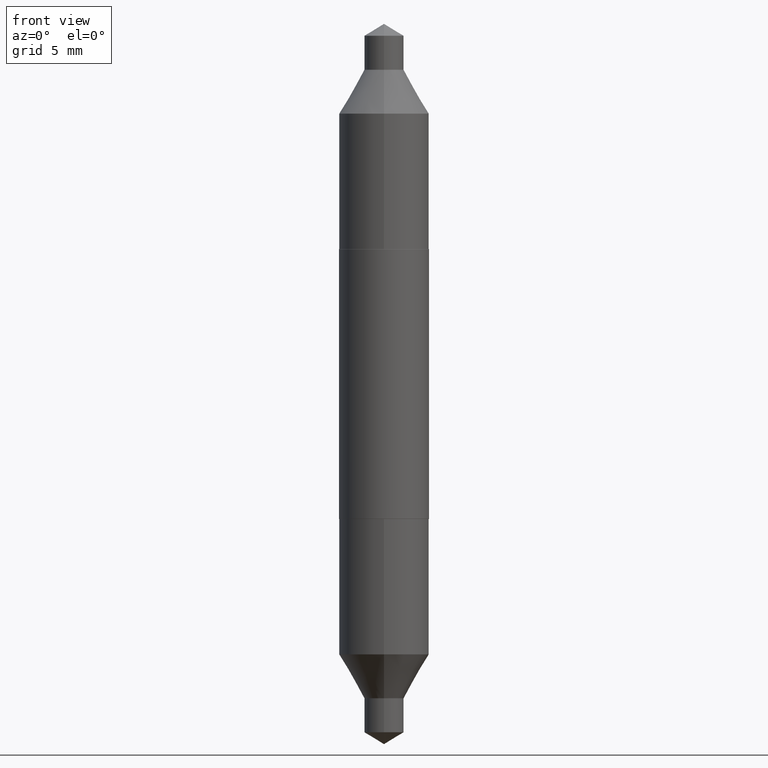
[diagram: clean part render]
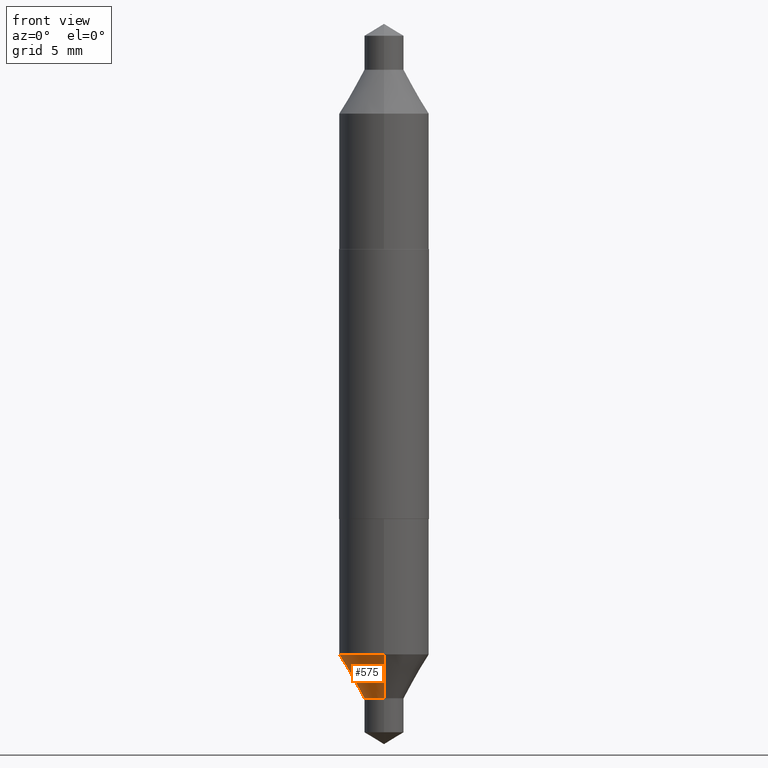
[diagram: same view with one face highlighted and labeled with its STEP entity id]
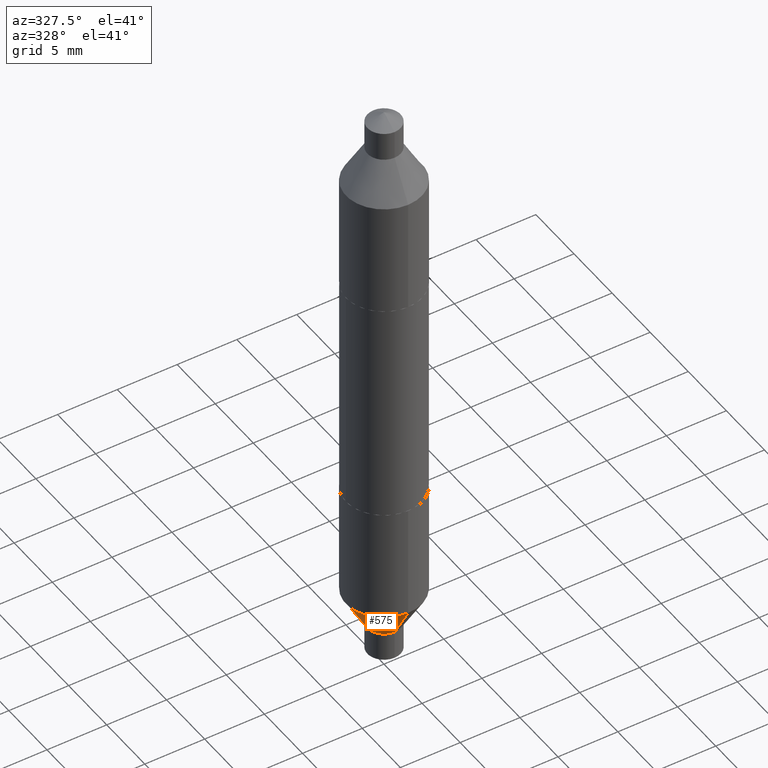
[diagram: same view with one face highlighted and labeled with its STEP entity id]
A machine part, front view. The second image highlights one B-rep face of the part: STEP entity #575.
A second angle (auxiliary view) of the same face is appended — the face is thin or edge-on in the first view.
In plain terms, the highlighted conical surface has half-angle 30 deg.
Its self-contained STEP definition (entity closure, byte-faithful):
#10 = VERTEX_POINT ( 'NONE', #272 ) ;
#19 = CARTESIAN_POINT ( 'NONE',  ( 3.886668764607960911E-16, 0.05469999999999695245, -0.8726000000000001533 ) ) ;
#44 = ORIENTED_EDGE ( 'NONE', *, *, #266, .F. ) ;
#47 = CARTESIAN_POINT ( 'NONE',  ( 1.839490633017951177E-29, -2.616745993639524273E-15, -0.7508368282279060946 ) ) ;
#76 = VECTOR ( 'NONE', #664, 39.37007874015748143 ) ;
#97 = EDGE_LOOP ( 'NONE', ( #44, #377, #609, #103 ) ) ;
#103 = ORIENTED_EDGE ( 'NONE', *, *, #340, .F. ) ;
#108 = CARTESIAN_POINT ( 'NONE',  ( -3.819680584694172401E-16, -0.05470000000000303092, -0.8725999999999998202 ) ) ;
#120 = DIRECTION ( 'NONE',  ( -2.454362535592602182E-29, 3.478745012132013039E-15, 1.000000000000000000 ) ) ;
#129 = CARTESIAN_POINT ( 'NONE',  ( -8.728703347107652936E-16, -0.1250000000000026923, -0.7508368282279057615 ) ) ;
#150 = CIRCLE ( 'NONE', #619, 0.1250000000000000555 ) ;
#171 = LINE ( 'NONE', #108, #76 ) ;
#181 = EDGE_CURVE ( 'NONE', #288, #10, #637, .T. ) ;
#184 = CARTESIAN_POINT ( 'NONE',  ( 2.138341600030304914E-29, -3.040329020103069038E-15, -0.8726000000000000423 ) ) ;
#198 = DIRECTION ( 'NONE',  ( -2.454362535592602182E-29, 3.478745012132013039E-15, 1.000000000000000000 ) ) ;
#266 = EDGE_CURVE ( 'NONE', #288, #320, #353, .T. ) ;
#272 = CARTESIAN_POINT ( 'NONE',  ( -3.819680584694172401E-16, -0.05470000000000303092, -0.8725999999999998202 ) ) ;
#275 = VERTEX_POINT ( 'NONE', #129 ) ;
#288 = VERTEX_POINT ( 'NONE', #572 ) ;
#320 = VERTEX_POINT ( 'NONE', #683 ) ;
#340 = EDGE_CURVE ( 'NONE', #320, #275, #150, .T. ) ;
#348 = DIRECTION ( 'NONE',  ( -2.454362535592602182E-29, 3.478745012132013039E-15, 1.000000000000000000 ) ) ;
#353 = LINE ( 'NONE', #19, #695 ) ;
#377 = ORIENTED_EDGE ( 'NONE', *, *, #181, .T. ) ;
#390 = AXIS2_PLACEMENT_3D ( 'NONE', #606, #120, #394 ) ;
#394 = DIRECTION ( 'NONE',  ( -6.982962677686265922E-15, -1.000000000000000000, 2.497118824190368833E-15 ) ) ;
#457 = EDGE_CURVE ( 'NONE', #10, #275, #171, .T. ) ;
#470 = CONICAL_SURFACE ( 'NONE', #636, 0.05469999999999999168, 0.5235987755982929315 ) ;
#523 = DIRECTION ( 'NONE',  ( -6.982962677686266711E-15, -1.000000000000000000, 3.278217592397114284E-15 ) ) ;
#572 = CARTESIAN_POINT ( 'NONE',  ( 3.886668764607983591E-16, 0.05469999999999694551, -0.8726000000000001533 ) ) ;
#575 = ADVANCED_FACE ( 'NONE', ( #615 ), #470, .T. ) ;
#606 = CARTESIAN_POINT ( 'NONE',  ( 2.138341600030304914E-29, -3.040329020103069038E-15, -0.8726000000000000423 ) ) ;
#609 = ORIENTED_EDGE ( 'NONE', *, *, #457, .T. ) ;
#615 = FACE_OUTER_BOUND ( 'NONE', #97, .T. ) ;
#619 = AXIS2_PLACEMENT_3D ( 'NONE', #47, #198, #523 ) ;
#636 = AXIS2_PLACEMENT_3D ( 'NONE', #184, #348, #674 ) ;
#637 = CIRCLE ( 'NONE', #390, 0.05469999999999999168 ) ;
#664 = DIRECTION ( 'NONE',  ( -3.491481338843118367E-15, -0.4999999999999918954, 0.8660254037844432595 ) ) ;
#670 = DIRECTION ( 'NONE',  ( 3.552713678800442554E-15, 0.4999999999999978351, 0.8660254037844399289 ) ) ;
#674 = DIRECTION ( 'NONE',  ( -6.982962677686265922E-15, -1.000000000000000000, 2.497118824190368833E-15 ) ) ;
#683 = CARTESIAN_POINT ( 'NONE',  ( 8.881784197001394318E-16, 0.1249999999999974742, -0.7508368282279065387 ) ) ;
#695 = VECTOR ( 'NONE', #670, 39.37007874015748854 ) ;